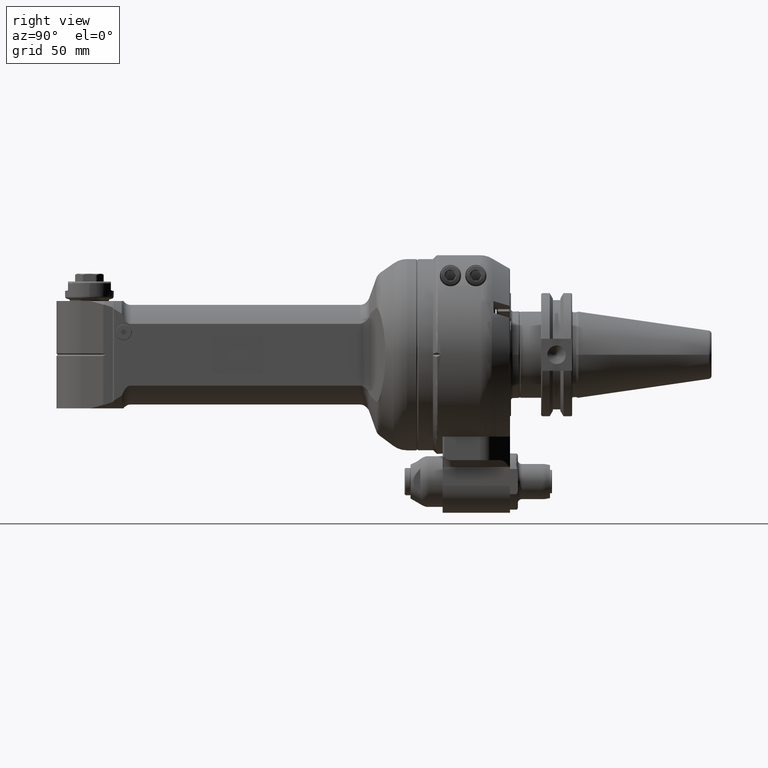
[diagram: clean part render]
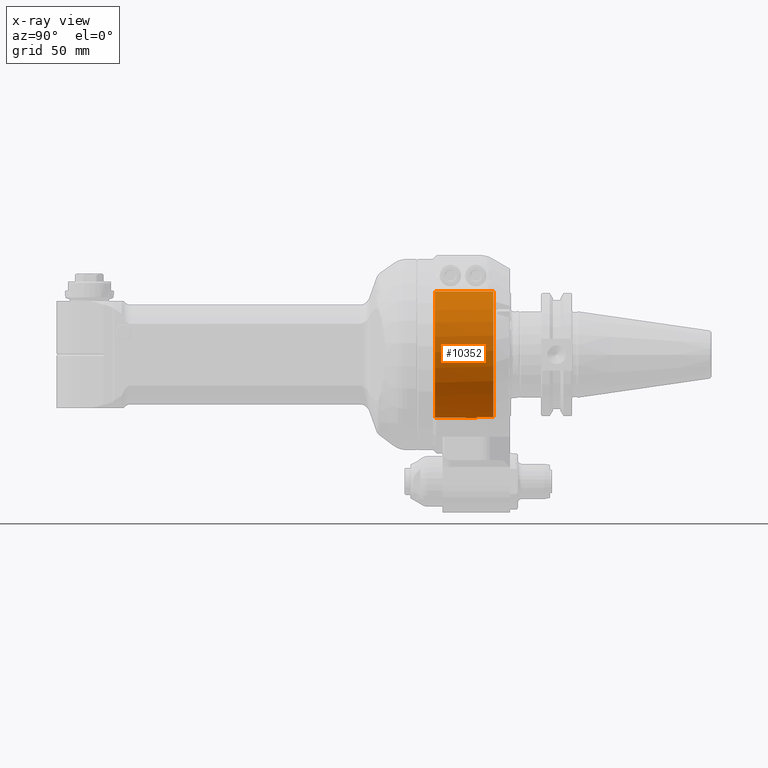
[diagram: x-ray — body ghosted, one internal face saturated and labeled with its STEP entity id]
A machine part, right view, then the same camera in x-ray: the body is ghosted and one INTERNAL B-rep face — a face not visible from any outside direction — is saturated and labeled: STEP entity #10352.
In plain terms, the highlighted cylindrical surface (partial cylindrical patch) has radius 32.5 mm, axis along (0, -1, 0).
Its self-contained STEP definition (entity closure, byte-faithful):
#1145=FACE_OUTER_BOUND('',#1822,.T.);
#1822=EDGE_LOOP('',(#8191,#8192,#8193,#8194,#8195,#8196,#8197,#8198));
#2521=LINE('',#18865,#3197);
#2522=LINE('',#18868,#3198);
#2523=LINE('',#18872,#3199);
#2524=LINE('',#18876,#3200);
#3197=VECTOR('',#13724,8.5);
#3198=VECTOR('',#13727,8.5);
#3199=VECTOR('',#13730,30.);
#3200=VECTOR('',#13733,29.99999999998);
#3852=CIRCLE('',#11400,32.5);
#3874=CIRCLE('',#11450,32.5);
#3875=CIRCLE('',#11451,32.5);
#3876=CIRCLE('',#11452,32.5);
#4635=VERTEX_POINT('',#17973);
#4636=VERTEX_POINT('',#17975);
#4674=VERTEX_POINT('',#18863);
#4675=VERTEX_POINT('',#18867);
#4676=VERTEX_POINT('',#18869);
#4677=VERTEX_POINT('',#18871);
#4678=VERTEX_POINT('',#18873);
#4679=VERTEX_POINT('',#18875);
#5866=EDGE_CURVE('',#4636,#4635,#3852,.T.);
#5936=EDGE_CURVE('',#4635,#4674,#2521,.T.);
#5937=EDGE_CURVE('',#4636,#4675,#2522,.T.);
#5938=EDGE_CURVE('',#4676,#4674,#3874,.T.);
#5939=EDGE_CURVE('',#4676,#4677,#2523,.T.);
#5940=EDGE_CURVE('',#4678,#4677,#3875,.T.);
#5941=EDGE_CURVE('',#4678,#4679,#2524,.T.);
#5942=EDGE_CURVE('',#4675,#4679,#3876,.T.);
#8191=ORIENTED_EDGE('',*,*,#5937,.F.);
#8192=ORIENTED_EDGE('',*,*,#5866,.T.);
#8193=ORIENTED_EDGE('',*,*,#5936,.T.);
#8194=ORIENTED_EDGE('',*,*,#5938,.F.);
#8195=ORIENTED_EDGE('',*,*,#5939,.T.);
#8196=ORIENTED_EDGE('',*,*,#5940,.F.);
#8197=ORIENTED_EDGE('',*,*,#5941,.T.);
#8198=ORIENTED_EDGE('',*,*,#5942,.F.);
#9784=CYLINDRICAL_SURFACE('',#11449,32.5);
#10352=ADVANCED_FACE('',(#1145),#9784,.F.);
#11400=AXIS2_PLACEMENT_3D('',#17976,#13593,#13594);
#11449=AXIS2_PLACEMENT_3D('',#18866,#13725,#13726);
#11450=AXIS2_PLACEMENT_3D('',#18870,#13728,#13729);
#11451=AXIS2_PLACEMENT_3D('',#18874,#13731,#13732);
#11452=AXIS2_PLACEMENT_3D('',#18877,#13734,#13735);
#13593=DIRECTION('center_axis',(0.,1.,0.));
#13594=DIRECTION('ref_axis',(0.164179104477598,0.,-0.986430545782588));
#13724=DIRECTION('',(0.,1.,0.));
#13725=DIRECTION('center_axis',(0.,-1.,0.));
#13726=DIRECTION('ref_axis',(1.38678298153134E-13,0.,-1.));
#13727=DIRECTION('',(0.,1.,0.));
#13728=DIRECTION('center_axis',(0.,-1.,0.));
#13729=DIRECTION('ref_axis',(-0.0461538461538519,0.,0.998934343430642));
#13730=DIRECTION('',(0.,-1.,0.));
#13731=DIRECTION('center_axis',(0.,1.,0.));
#13732=DIRECTION('ref_axis',(0.,0.,-1.));
#13733=DIRECTION('',(3.148370453234E-13,1.,-1.421085471521E-14));
#13734=DIRECTION('center_axis',(0.,-1.,0.));
#13735=DIRECTION('ref_axis',(0.164179104477598,0.,-0.986430545782588));
#17973=CARTESIAN_POINT('',(-5.335820895522,22.5,-32.05899273793));
#17975=CARTESIAN_POINT('',(5.335820895522,22.5,-32.05899273793));
#17976=CARTESIAN_POINT('Origin',(0.,22.5,0.));
#18863=CARTESIAN_POINT('',(-5.335820895522,31.,-32.05899273793));
#18865=CARTESIAN_POINT('',(-5.335820895522,22.5,-32.05899273793));
#18866=CARTESIAN_POINT('Origin',(0.,16.5,0.));
#18867=CARTESIAN_POINT('',(5.335820895522,31.,-32.05899273793));
#18868=CARTESIAN_POINT('',(5.335820895522,22.5,-32.05899273793));
#18869=CARTESIAN_POINT('',(-1.5,31.,32.4653661615));
#18870=CARTESIAN_POINT('Origin',(0.,31.,0.));
#18871=CARTESIAN_POINT('',(-1.5,1.,32.4653661615));
#18872=CARTESIAN_POINT('',(-1.5,31.,32.4653661615));
#18873=CARTESIAN_POINT('',(1.499999999991,1.000000000023,32.4653661615));
#18874=CARTESIAN_POINT('Origin',(0.,0.9999999999999,0.));
#18875=CARTESIAN_POINT('',(1.5,31.,32.4653661615));
#18876=CARTESIAN_POINT('',(1.499999999991,1.000000000023,32.4653661615));
#18877=CARTESIAN_POINT('Origin',(0.,31.,0.));